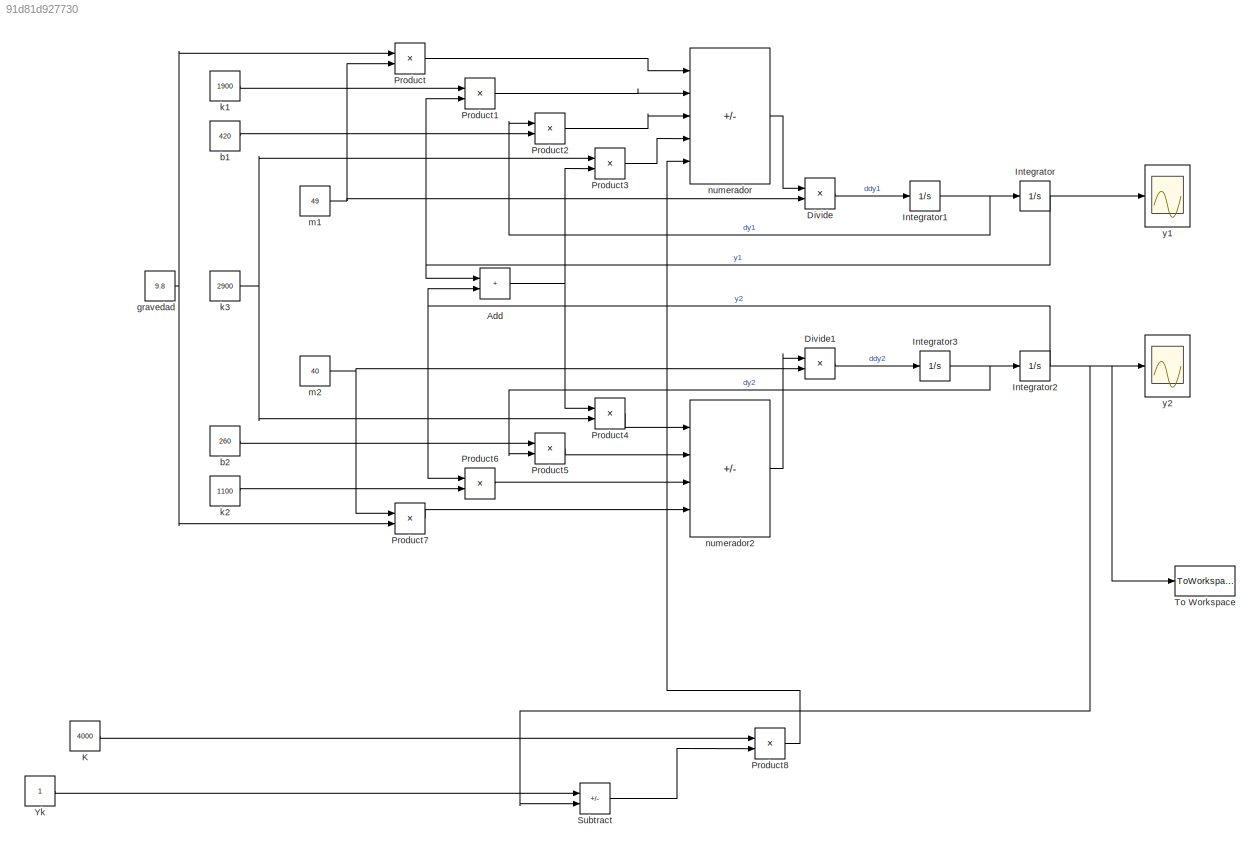
MODEL slx_91d81d927730
KIND model
CONFIG AbsTol = auto
CONFIG EnableMultiTasking = off
CONFIG FixedStep = auto
CONFIG MaxStep = auto
CONFIG MinStep = auto
CONFIG RelTol = 1e-3
CONFIG SampleTimeConstraint = Unconstrained
CONFIG SolverName = VariableStepAuto
CONFIG StartTime = 0.0
CONFIG StopTime = 10
BLOCK [Sum] Add
  IconShape = rectangular
BLOCK [Product] Divide
  Inputs = */
BLOCK [Product] Divide1
  Inputs = */
BLOCK [Integrator] Integrator
BLOCK [Integrator] Integrator1
BLOCK [Integrator] Integrator2
BLOCK [Integrator] Integrator3
BLOCK [Constant] K
  Value = 4000
BLOCK [Product] Product
BLOCK [Product] Product1
BLOCK [Product] Product2
BLOCK [Product] Product3
BLOCK [Product] Product4
BLOCK [Product] Product5
BLOCK [Product] Product6
BLOCK [Product] Product7
BLOCK [Product] Product8
BLOCK [Sum] Subtract
  IconShape = rectangular
  Inputs = +-
BLOCK [ToWorkspace] To Workspace
  MaxDataPoints = inf
  SampleTime = -1
  Save2DSignal = 2-D array (concatenate along first dimension)
  VariableName = y2_out
BLOCK [Constant] Yk
BLOCK [Constant] b1
  Value = 420
BLOCK [Constant] b2
  Value = 260
BLOCK [Constant] gravedad
  Value = 9.8
BLOCK [Constant] k1
  Value = 1900
BLOCK [Constant] k2
  Value = 1100
BLOCK [Constant] k3
  Value = 2900
BLOCK [Constant] m1
  Value = 49
BLOCK [Constant] m2
  Value = 40
BLOCK [Sum] numerador
  IconShape = rectangular
  Inputs = -----
BLOCK [Sum] numerador2
  IconShape = rectangular
  Inputs = ----
BLOCK [Scope] y1
  ActiveDisplayYMaximum = -0.19027477524128955
  ActiveDisplayYMinimum = -1.0969536371946875
  ContainerLayout = {"WindowBounds":[1044,1009,1278,765],"gridDimensions":{"w":1,"h":2},"tileCount":2,"tileCoverage":[1,2],"columnWeights":1,"rowWeights":[0.5,0.5],"tileOccupancy":[{"children":{"id":"/y1"}},{"children":{"id":"/y2"}}]}
  Description = y
  Floating = off
  GraphicalSettings = {"AxesScalingProperties":{"AlignXAxis":"Center","AlignYAxis":"Center","AutoScaleXAxisLimits":false,"AxesScaling":"Manual","AxesScalingNumUpdates":10,"ExpandOnly":true,"ScaleAxesLimitsAtStop":false,"XAxisDataRange":100,"YAxisDataRange":80},"DisplayProperties":{"ColorOrder":["auto","auto","auto","auto","auto","auto","auto","auto","auto","auto","auto","auto","auto","auto","auto","auto","auto","auto",...<+1998ch>
  MultipleDisplayCache = [{"MaxYLimMag":1.2302327604753573,"MaxYLimReal":-0.19027477524128955,"MinYLimMag":0,"MinYLimReal":-1.0969536371946875,"PlotAsMagnitudePhase":false,"ShowGrid":true,"ShowLegend":false,"Title":"%<SignalLabel>","YLabel":""}]
  NumInputPorts = 1
  ScopeFrameLocation = window
  WasSavedAsWebScope = on
  WindowPosition = [798.000000,366.000000,560.000000,421.000000,]
BLOCK [Scope] y2
  ActiveDisplayYMaximum = 0.89288192998477744
  ActiveDisplayYMinimum = 0.24475306331289659
  ContainerLayout = {"WindowBounds":[1044,1009,1278,765],"gridDimensions":{"w":1,"h":2},"tileCount":2,"tileCoverage":[1,2],"columnWeights":1,"rowWeights":[0.5,0.5],"tileOccupancy":[{"children":{"id":"/y1"}},{"children":{"id":"/y2"}}]}
  DataLoggingVariableName = ScopeData1
  Description = y
  Floating = off
  GraphicalSettings = {"AxesScalingProperties":{"AlignXAxis":"Center","AlignYAxis":"Center","AutoScaleXAxisLimits":false,"AxesScaling":"Manual","AxesScalingNumUpdates":10,"ExpandOnly":true,"ScaleAxesLimitsAtStop":false,"XAxisDataRange":100,"YAxisDataRange":80},"DisplayProperties":{"ColorOrder":["auto","auto","auto","auto","auto","auto","auto","auto","auto","auto","auto","auto","auto","auto","auto","auto","auto","auto",...<+2004ch>
  MultipleDisplayCache = [{"MaxYLimMag":0.96010818629603834,"MaxYLimReal":0.89288192998477744,"MinYLimMag":0,"MinYLimReal":0.24475306331289659,"PlotAsMagnitudePhase":false,"ShowGrid":true,"ShowLegend":false,"Title":"%<SignalLabel>","YLabel":""}]
  NumInputPorts = 1
  ScopeFrameLocation = window
  WasSavedAsWebScope = on
  WindowPosition = [1239.000000,214.000000,600.000000,494.000000,]
NET Add:1 -> Product3:2, Product4:1
LINE Divide1:1 -> Integrator3:1
LINE Divide:1 -> Integrator1:1
NET Integrator1:1 -> Integrator:1, Product2:1
NET Integrator2:1 -> Add:2, Product6:1, Subtract:2, To Workspace:1, y2:1
NET Integrator3:1 -> Integrator2:1, Product5:2
NET Integrator:1 -> Add:1, Product1:2, y1:1
LINE K:1 -> Product8:1
LINE Product1:1 -> numerador:2
LINE Product2:1 -> numerador:3
LINE Product3:1 -> numerador:4
LINE Product4:1 -> numerador2:1
LINE Product5:1 -> numerador2:2
LINE Product6:1 -> numerador2:3
LINE Product7:1 -> numerador2:4
LINE Product8:1 -> numerador:5
LINE Product:1 -> numerador:1
LINE Subtract:1 -> Product8:2
LINE Yk:1 -> Subtract:1
LINE b1:1 -> Product2:2
LINE b2:1 -> Product5:1
NET gravedad:1 -> Product7:2, Product:1
LINE k1:1 -> Product1:1
LINE k2:1 -> Product6:2
NET k3:1 -> Product3:1, Product4:2
NET m1:1 -> Divide:2, Product:2
NET m2:1 -> Divide1:2, Product7:1
LINE numerador2:1 -> Divide1:1
LINE numerador:1 -> Divide:1
note: NET lines group one-source signal fan-out (src -> all destinations, sorted); 1:1 wires keep LINE
